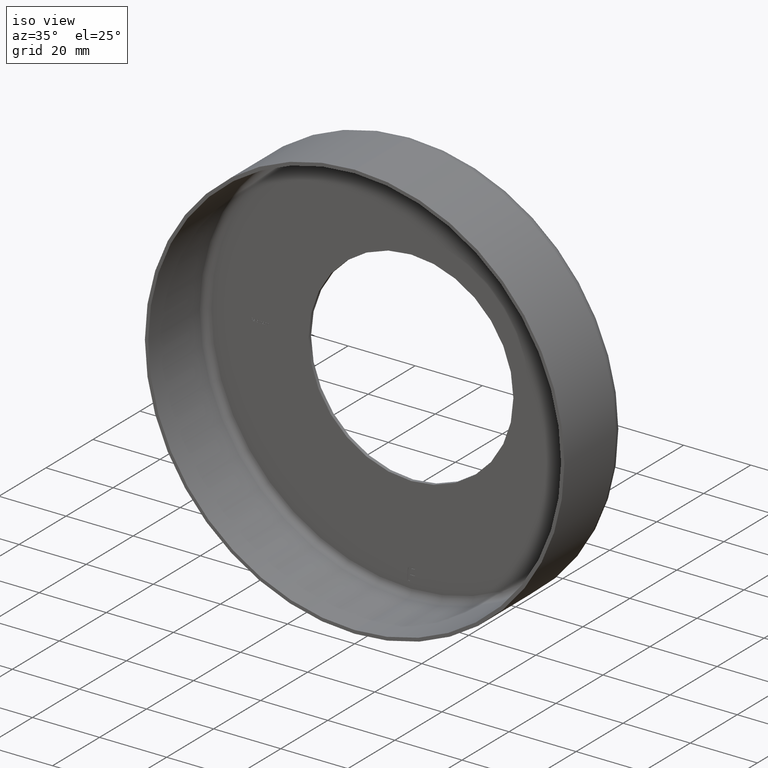
[diagram: clean part render]
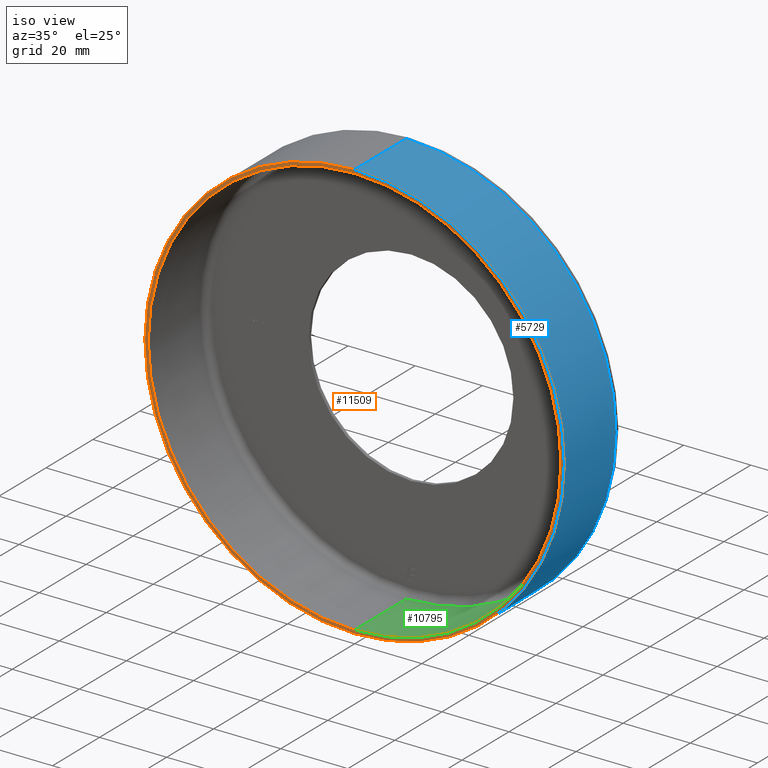
[diagram: same view with three faces highlighted in distinct colors, each labeled with its STEP entity id]
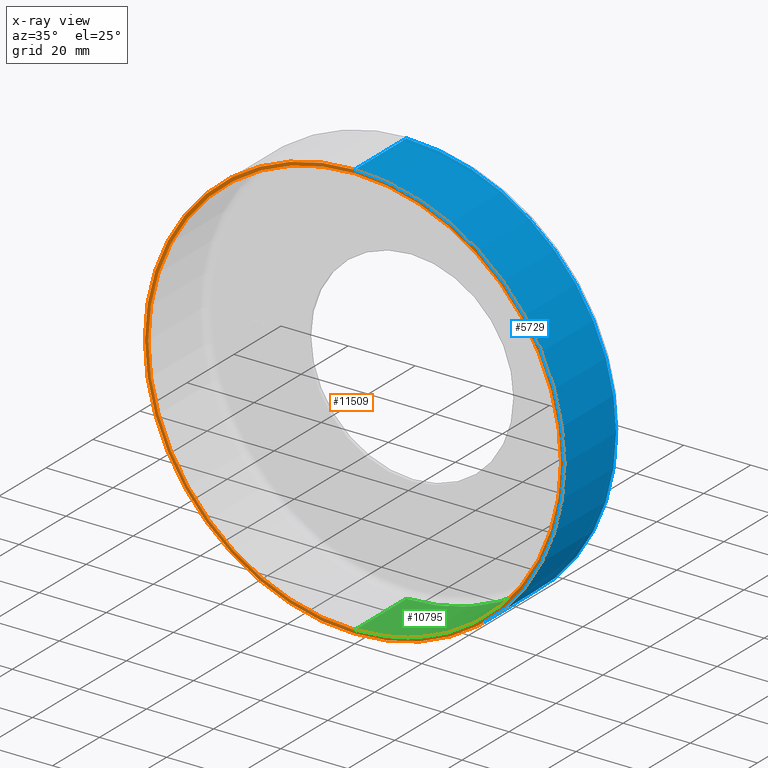
[diagram: x-ray of the same camera — body ghosted, the three highlighted faces saturated]
A machine part, iso view with three faces highlighted in distinct colors.
The next image is the same camera in x-ray (body ghosted, the three faces saturated) — at least one of them is partly hidden behind the body in this view.
Their STEP definitions:

[orange] entity #11509 — the highlighted planar face has unit normal (0, -1, -0).
#1169 = FACE_OUTER_BOUND ( 'NONE', #8267, .T. ) ;
#1296 = DIRECTION ( 'NONE',  ( -0.000000000000000000, -1.000000000000000000, -0.000000000000000000 ) ) ;
#1434 = ORIENTED_EDGE ( 'NONE', *, *, #8663, .F. ) ;
#1829 = VERTEX_POINT ( 'NONE', #13854 ) ;
#2371 = CARTESIAN_POINT ( 'NONE',  ( 0.000000000000000000, 0.000000000000000000, -62.50000000000000000 ) ) ;
#2733 = VERTEX_POINT ( 'NONE', #2371 ) ;
#2831 = EDGE_CURVE ( 'NONE', #16007, #2902, #10325, .T. ) ;
#2865 = DIRECTION ( 'NONE',  ( 0.000000000000000000, 0.000000000000000000, -1.000000000000000000 ) ) ;
#2902 = VERTEX_POINT ( 'NONE', #13003 ) ;
#3856 = AXIS2_PLACEMENT_3D ( 'NONE', #4161, #13178, #2865 ) ;
#4161 = CARTESIAN_POINT ( 'NONE',  ( 0.000000000000000000, -1.224646799147353207E-16, 0.000000000000000000 ) ) ;
#4559 = AXIS2_PLACEMENT_3D ( 'NONE', #12004, #7045, #9666 ) ;
#4608 = DIRECTION ( 'NONE',  ( 0.000000000000000000, 0.000000000000000000, -1.000000000000000000 ) ) ;
#5560 = EDGE_LOOP ( 'NONE', ( #9959, #1434 ) ) ;
#5628 = ORIENTED_EDGE ( 'NONE', *, *, #8351, .T. ) ;
#7045 = DIRECTION ( 'NONE',  ( 0.000000000000000000, -1.000000000000000000, -0.000000000000000000 ) ) ;
#7160 = CARTESIAN_POINT ( 'NONE',  ( 0.000000000000000000, -1.224646799147353207E-16, 0.000000000000000000 ) ) ;
#7668 = EDGE_CURVE ( 'NONE', #1829, #2733, #10050, .T. ) ;
#8267 = EDGE_LOOP ( 'NONE', ( #5628, #14022 ) ) ;
#8351 = EDGE_CURVE ( 'NONE', #2733, #1829, #10844, .T. ) ;
#8663 = EDGE_CURVE ( 'NONE', #2902, #16007, #16629, .T. ) ;
#9666 = DIRECTION ( 'NONE',  ( 0.000000000000000000, 0.000000000000000000, -1.000000000000000000 ) ) ;
#9959 = ORIENTED_EDGE ( 'NONE', *, *, #2831, .F. ) ;
#10014 = AXIS2_PLACEMENT_3D ( 'NONE', #15382, #1296, #14122 ) ;
#10050 = CIRCLE ( 'NONE', #10014, 62.50000000000000000 ) ;
#10314 = AXIS2_PLACEMENT_3D ( 'NONE', #11170, #13725, #15020 ) ;
#10325 = CIRCLE ( 'NONE', #3856, 61.50000000000000000 ) ;
#10806 = PLANE ( 'NONE',  #4559 ) ;
#10844 = CIRCLE ( 'NONE', #10314, 62.50000000000000000 ) ;
#11057 = CARTESIAN_POINT ( 'NONE',  ( 0.000000000000000000, -1.224646799147353207E-16, -61.50000000000000000 ) ) ;
#11170 = CARTESIAN_POINT ( 'NONE',  ( 0.000000000000000000, 0.000000000000000000, 0.000000000000000000 ) ) ;
#11509 = ADVANCED_FACE ( 'NONE', ( #1169, #14345 ), #10806, .T. ) ;
#12004 = CARTESIAN_POINT ( 'NONE',  ( 61.50000000000000000, -6.123233995736766036E-17, 0.000000000000000000 ) ) ;
#12256 = AXIS2_PLACEMENT_3D ( 'NONE', #7160, #12290, #4608 ) ;
#12290 = DIRECTION ( 'NONE',  ( -0.000000000000000000, -1.000000000000000000, -0.000000000000000000 ) ) ;
#13003 = CARTESIAN_POINT ( 'NONE',  ( 7.531577814756222656E-15, -1.224646799147353207E-16, 61.50000000000000000 ) ) ;
#13178 = DIRECTION ( 'NONE',  ( -0.000000000000000000, -1.000000000000000000, -0.000000000000000000 ) ) ;
#13725 = DIRECTION ( 'NONE',  ( -0.000000000000000000, -1.000000000000000000, -0.000000000000000000 ) ) ;
#13854 = CARTESIAN_POINT ( 'NONE',  ( 7.654042494670957804E-15, 0.000000000000000000, 62.50000000000000000 ) ) ;
#14022 = ORIENTED_EDGE ( 'NONE', *, *, #7668, .T. ) ;
#14122 = DIRECTION ( 'NONE',  ( 0.000000000000000000, 0.000000000000000000, -1.000000000000000000 ) ) ;
#14345 = FACE_BOUND ( 'NONE', #5560, .T. ) ;
#15020 = DIRECTION ( 'NONE',  ( 0.000000000000000000, 0.000000000000000000, -1.000000000000000000 ) ) ;
#15382 = CARTESIAN_POINT ( 'NONE',  ( 0.000000000000000000, 0.000000000000000000, 0.000000000000000000 ) ) ;
#16007 = VERTEX_POINT ( 'NONE', #11057 ) ;
#16629 = CIRCLE ( 'NONE', #12256, 61.50000000000000000 ) ;

[blue] entity #5729 — the highlighted cylindrical surface (partial cylindrical patch) has radius 62.5 mm, axis along (-0, -1, -0).
#1396 = CARTESIAN_POINT ( 'NONE',  ( 0.000000000000000000, 0.000000000000000000, -62.50000000000000000 ) ) ;
#1453 = FACE_OUTER_BOUND ( 'NONE', #12524, .T. ) ;
#1829 = VERTEX_POINT ( 'NONE', #13854 ) ;
#1892 = DIRECTION ( 'NONE',  ( 0.000000000000000000, 0.000000000000000000, -1.000000000000000000 ) ) ;
#1939 = CARTESIAN_POINT ( 'NONE',  ( 7.654042494670957804E-15, 0.000000000000000000, 62.50000000000000000 ) ) ;
#2233 = CIRCLE ( 'NONE', #16112, 62.50000000000000000 ) ;
#2371 = CARTESIAN_POINT ( 'NONE',  ( 0.000000000000000000, 0.000000000000000000, -62.50000000000000000 ) ) ;
#2733 = VERTEX_POINT ( 'NONE', #2371 ) ;
#3779 = EDGE_CURVE ( 'NONE', #9793, #2733, #12518, .T. ) ;
#4043 = ORIENTED_EDGE ( 'NONE', *, *, #4533, .T. ) ;
#4533 = EDGE_CURVE ( 'NONE', #16442, #1829, #4687, .T. ) ;
#4687 = LINE ( 'NONE', #1939, #4878 ) ;
#4878 = VECTOR ( 'NONE', #8495, 1000.000000000000000 ) ;
#5704 = DIRECTION ( 'NONE',  ( -0.000000000000000000, -1.000000000000000000, -0.000000000000000000 ) ) ;
#5729 = ADVANCED_FACE ( 'NONE', ( #1453 ), #6468, .T. ) ;
#5955 = ORIENTED_EDGE ( 'NONE', *, *, #6377, .T. ) ;
#6377 = EDGE_CURVE ( 'NONE', #9793, #16442, #2233, .T. ) ;
#6468 = CYLINDRICAL_SURFACE ( 'NONE', #8920, 62.50000000000000000 ) ;
#6878 = DIRECTION ( 'NONE',  ( 0.000000000000000000, 0.000000000000000000, -1.000000000000000000 ) ) ;
#7114 = DIRECTION ( 'NONE',  ( -0.000000000000000000, -1.000000000000000000, -0.000000000000000000 ) ) ;
#8351 = EDGE_CURVE ( 'NONE', #2733, #1829, #10844, .T. ) ;
#8495 = DIRECTION ( 'NONE',  ( -0.000000000000000000, -1.000000000000000000, -0.000000000000000000 ) ) ;
#8920 = AXIS2_PLACEMENT_3D ( 'NONE', #14571, #5704, #1892 ) ;
#9308 = ORIENTED_EDGE ( 'NONE', *, *, #3779, .F. ) ;
#9657 = ORIENTED_EDGE ( 'NONE', *, *, #8351, .F. ) ;
#9793 = VERTEX_POINT ( 'NONE', #16382 ) ;
#10314 = AXIS2_PLACEMENT_3D ( 'NONE', #11170, #13725, #15020 ) ;
#10844 = CIRCLE ( 'NONE', #10314, 62.50000000000000000 ) ;
#11170 = CARTESIAN_POINT ( 'NONE',  ( 0.000000000000000000, 0.000000000000000000, 0.000000000000000000 ) ) ;
#12518 = LINE ( 'NONE', #1396, #15317 ) ;
#12524 = EDGE_LOOP ( 'NONE', ( #5955, #4043, #9657, #9308 ) ) ;
#13725 = DIRECTION ( 'NONE',  ( -0.000000000000000000, -1.000000000000000000, -0.000000000000000000 ) ) ;
#13854 = CARTESIAN_POINT ( 'NONE',  ( 7.654042494670957804E-15, 0.000000000000000000, 62.50000000000000000 ) ) ;
#13866 = CARTESIAN_POINT ( 'NONE',  ( 7.654042494670957804E-15, 22.00000000000000355, 62.50000000000000000 ) ) ;
#14298 = DIRECTION ( 'NONE',  ( -0.000000000000000000, -1.000000000000000000, -0.000000000000000000 ) ) ;
#14571 = CARTESIAN_POINT ( 'NONE',  ( 0.000000000000000000, 0.000000000000000000, 0.000000000000000000 ) ) ;
#15020 = DIRECTION ( 'NONE',  ( 0.000000000000000000, 0.000000000000000000, -1.000000000000000000 ) ) ;
#15317 = VECTOR ( 'NONE', #14298, 1000.000000000000000 ) ;
#15885 = CARTESIAN_POINT ( 'NONE',  ( 0.000000000000000000, 22.00000000000000355, 0.000000000000000000 ) ) ;
#16112 = AXIS2_PLACEMENT_3D ( 'NONE', #15885, #7114, #6878 ) ;
#16382 = CARTESIAN_POINT ( 'NONE',  ( 0.000000000000000000, 22.00000000000000355, -62.50000000000000000 ) ) ;
#16442 = VERTEX_POINT ( 'NONE', #13866 ) ;

[green] entity #10795 — the highlighted cylindrical surface (partial cylindrical patch) has radius 61.5 mm, axis along (-0, -1, -0).
#912 = CARTESIAN_POINT ( 'NONE',  ( 0.000000000000000000, 0.000000000000000000, -61.50000000000000000 ) ) ;
#1309 = CARTESIAN_POINT ( 'NONE',  ( 7.531577814756222656E-15, 22.00000000000000355, 61.50000000000000000 ) ) ;
#1545 = AXIS2_PLACEMENT_3D ( 'NONE', #11001, #13609, #3404 ) ;
#1872 = EDGE_CURVE ( 'NONE', #7300, #2902, #9506, .T. ) ;
#2152 = CARTESIAN_POINT ( 'NONE',  ( 0.000000000000000000, 22.00000000000000355, -61.50000000000000000 ) ) ;
#2782 = EDGE_CURVE ( 'NONE', #15231, #7300, #8708, .T. ) ;
#2831 = EDGE_CURVE ( 'NONE', #16007, #2902, #10325, .T. ) ;
#2865 = DIRECTION ( 'NONE',  ( 0.000000000000000000, 0.000000000000000000, -1.000000000000000000 ) ) ;
#2902 = VERTEX_POINT ( 'NONE', #13003 ) ;
#3404 = DIRECTION ( 'NONE',  ( 0.000000000000000000, 0.000000000000000000, -1.000000000000000000 ) ) ;
#3716 = DIRECTION ( 'NONE',  ( -0.000000000000000000, -1.000000000000000000, -0.000000000000000000 ) ) ;
#3856 = AXIS2_PLACEMENT_3D ( 'NONE', #4161, #13178, #2865 ) ;
#4161 = CARTESIAN_POINT ( 'NONE',  ( 0.000000000000000000, -1.224646799147353207E-16, 0.000000000000000000 ) ) ;
#4706 = DIRECTION ( 'NONE',  ( -0.000000000000000000, -1.000000000000000000, -0.000000000000000000 ) ) ;
#4724 = AXIS2_PLACEMENT_3D ( 'NONE', #8830, #3716, #5015 ) ;
#4767 = CYLINDRICAL_SURFACE ( 'NONE', #1545, 61.50000000000000000 ) ;
#5015 = DIRECTION ( 'NONE',  ( 0.000000000000000000, 0.000000000000000000, -1.000000000000000000 ) ) ;
#7300 = VERTEX_POINT ( 'NONE', #1309 ) ;
#7817 = EDGE_LOOP ( 'NONE', ( #10677, #11032, #11530, #8615 ) ) ;
#8520 = VECTOR ( 'NONE', #16394, 1000.000000000000000 ) ;
#8615 = ORIENTED_EDGE ( 'NONE', *, *, #2831, .T. ) ;
#8708 = CIRCLE ( 'NONE', #4724, 61.50000000000000000 ) ;
#8782 = CARTESIAN_POINT ( 'NONE',  ( 7.531577814756222656E-15, 0.000000000000000000, 61.50000000000000000 ) ) ;
#8830 = CARTESIAN_POINT ( 'NONE',  ( 0.000000000000000000, 22.00000000000000355, 0.000000000000000000 ) ) ;
#9506 = LINE ( 'NONE', #8782, #8520 ) ;
#10325 = CIRCLE ( 'NONE', #3856, 61.50000000000000000 ) ;
#10677 = ORIENTED_EDGE ( 'NONE', *, *, #1872, .F. ) ;
#10795 = ADVANCED_FACE ( 'NONE', ( #15379 ), #4767, .F. ) ;
#11001 = CARTESIAN_POINT ( 'NONE',  ( 0.000000000000000000, 0.000000000000000000, 0.000000000000000000 ) ) ;
#11032 = ORIENTED_EDGE ( 'NONE', *, *, #2782, .F. ) ;
#11057 = CARTESIAN_POINT ( 'NONE',  ( 0.000000000000000000, -1.224646799147353207E-16, -61.50000000000000000 ) ) ;
#11530 = ORIENTED_EDGE ( 'NONE', *, *, #15710, .T. ) ;
#13003 = CARTESIAN_POINT ( 'NONE',  ( 7.531577814756222656E-15, -1.224646799147353207E-16, 61.50000000000000000 ) ) ;
#13058 = LINE ( 'NONE', #912, #16084 ) ;
#13178 = DIRECTION ( 'NONE',  ( -0.000000000000000000, -1.000000000000000000, -0.000000000000000000 ) ) ;
#13609 = DIRECTION ( 'NONE',  ( -0.000000000000000000, -1.000000000000000000, -0.000000000000000000 ) ) ;
#15231 = VERTEX_POINT ( 'NONE', #2152 ) ;
#15379 = FACE_OUTER_BOUND ( 'NONE', #7817, .T. ) ;
#15710 = EDGE_CURVE ( 'NONE', #15231, #16007, #13058, .T. ) ;
#16007 = VERTEX_POINT ( 'NONE', #11057 ) ;
#16084 = VECTOR ( 'NONE', #4706, 1000.000000000000000 ) ;
#16394 = DIRECTION ( 'NONE',  ( -0.000000000000000000, -1.000000000000000000, -0.000000000000000000 ) ) ;